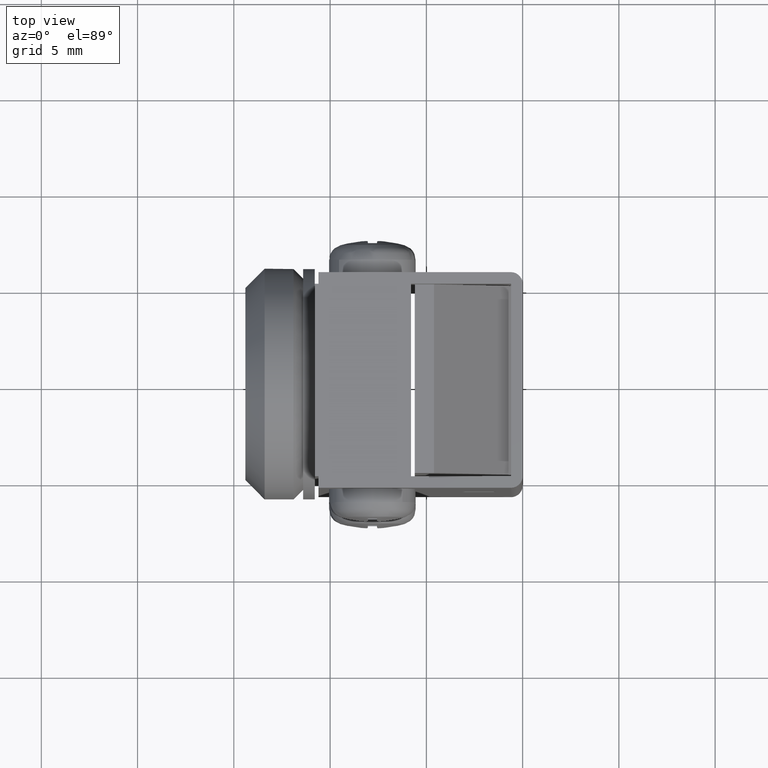
[diagram: clean part render]
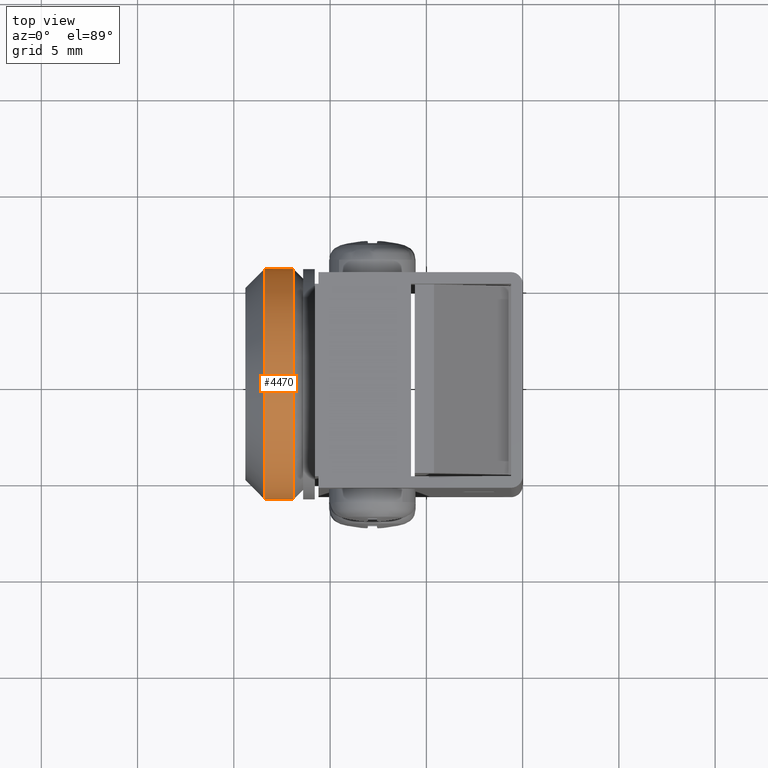
[diagram: same view with one face highlighted and labeled with its STEP entity id]
A machine part, top view. The second image highlights one B-rep face of the part: STEP entity #4470.
In plain terms, the highlighted face is a freeform B-spline surface patch.
Its self-contained STEP definition (entity closure, byte-faithful):
#4134=CARTESIAN_POINT('',(-13.099956999999900,0.0,22.0));
#4135=VERTEX_POINT('',#4134);
#4136=CARTESIAN_POINT('',(-13.099956999996570,5.981504002400083,16.470754574392810));
#4137=VERTEX_POINT('',#4136);
#4138=CARTESIAN_POINT('',(-13.099956999999900,0.0,22.0));
#4139=CARTESIAN_POINT('',(-13.099956999999904,5.546342949901852,22.000000000000007));
#4140=CARTESIAN_POINT('',(-13.099956999996568,5.981504002400083,16.470754574392814));
#4148=(BOUNDED_CURVE()B_SPLINE_CURVE(2,(#4138,#4139,#4140),.UNSPECIFIED.,.F.,.U.)B_SPLINE_CURVE_WITH_KNOTS((3,3),(0.0,0.236331300631307),.UNSPECIFIED.)CURVE()GEOMETRIC_REPRESENTATION_ITEM()RATIONAL_B_SPLINE_CURVE((1.0,0.723120658606908,0.969723356168768))REPRESENTATION_ITEM(''));
#4149=EDGE_CURVE('',#4135,#4137,#4148,.T.);
#4197=CARTESIAN_POINT('',(-13.099956999999900,-5.988808790529459,15.633708762762380));
#4198=VERTEX_POINT('',#4197);
#4212=CARTESIAN_POINT('',(-13.099956999999899,-5.988808790529459,15.633708762762373));
#4213=CARTESIAN_POINT('',(-13.099956999999897,-5.999999999999999,15.816683420179906));
#4214=CARTESIAN_POINT('',(-13.099956999999900,-6.0,16.0));
#4215=CARTESIAN_POINT('',(-13.099956999999902,-6.0,22.000000000000007));
#4216=CARTESIAN_POINT('',(-13.099956999999900,0.0,22.0));
#4224=(BOUNDED_CURVE()B_SPLINE_CURVE(2,(#4212,#4213,#4214,#4215,#4216),.UNSPECIFIED.,.F.,.U.)B_SPLINE_CURVE_WITH_KNOTS((3,2,3),(0.739332962240327,0.750000000000000,1.0),.UNSPECIFIED.)CURVE()GEOMETRIC_REPRESENTATION_ITEM()RATIONAL_B_SPLINE_CURVE((0.976072041669684,0.987502787901459,1.0,0.707106781186548,1.0))REPRESENTATION_ITEM(''));
#4225=EDGE_CURVE('',#4198,#4135,#4224,.T.);
#4248=CARTESIAN_POINT('',(-13.099956999999900,2.109699763927518,10.383135491574540));
#4249=VERTEX_POINT('',#4248);
#4250=CARTESIAN_POINT('',(-13.099956999996568,5.981504002400083,16.470754574392814));
#4251=CARTESIAN_POINT('',(-13.099956999999895,6.0,16.235740642071612));
#4252=CARTESIAN_POINT('',(-13.099956999999900,6.0,16.0));
#4253=CARTESIAN_POINT('',(-13.099956999999902,6.0,11.844336038125144));
#4254=CARTESIAN_POINT('',(-13.099956999999897,2.109699763927518,10.383135491574535));
#4262=(BOUNDED_CURVE()B_SPLINE_CURVE(2,(#4250,#4251,#4252,#4253,#4254),.UNSPECIFIED.,.F.,.U.)B_SPLINE_CURVE_WITH_KNOTS((3,2,3),(0.236331300631307,0.250000000000000,0.440284398181928),.UNSPECIFIED.)CURVE()GEOMETRIC_REPRESENTATION_ITEM()RATIONAL_B_SPLINE_CURVE((0.969723356168768,0.983986122579640,1.0,0.777067960506058,0.893499832776712))REPRESENTATION_ITEM(''));
#4263=EDGE_CURVE('',#4137,#4249,#4262,.T.);
#4346=CARTESIAN_POINT('',(-11.599942000000199,2.109707846357921,10.383138527343251));
#4347=VERTEX_POINT('',#4346);
#4363=CARTESIAN_POINT('',(-11.599942000012710,-5.988808790534555,15.633708762743259));
#4364=VERTEX_POINT('',#4363);
#4378=CARTESIAN_POINT('',(-11.599942000012710,-5.988808790534555,15.633708762743259));
#4379=CARTESIAN_POINT('',(-13.099956999999900,-5.988808790529459,15.633708762762380));
#4380=QUASI_UNIFORM_CURVE('',1,(#4378,#4379),.UNSPECIFIED.,.F.,.U.);
#4381=EDGE_CURVE('',#4364,#4198,#4380,.T.);
#4386=CARTESIAN_POINT('',(-11.599942000000199,2.109707846357921,10.383138527343251));
#4387=CARTESIAN_POINT('',(-13.099956999999900,2.109699763927518,10.383135491574540));
#4388=QUASI_UNIFORM_CURVE('',1,(#4386,#4387),.UNSPECIFIED.,.F.,.U.);
#4389=EDGE_CURVE('',#4347,#4249,#4388,.T.);
#4394=CARTESIAN_POINT('',(-11.562441625000201,-5.988808790531200,15.633708762790860));
#4395=CARTESIAN_POINT('',(-11.562441625000204,-6.355100027740342,21.622517553322066));
#4396=CARTESIAN_POINT('',(-11.562441625000201,-0.366291237209142,21.988808790531198));
#4397=CARTESIAN_POINT('',(-11.562441625000204,5.622517553322059,22.355100027740335));
#4398=CARTESIAN_POINT('',(-11.562441625000201,5.988808790531200,16.366291237209140));
#4399=CARTESIAN_POINT('',(-11.562441625000204,6.259423337216051,11.941782509181611));
#4400=CARTESIAN_POINT('',(-11.562441625000206,2.109707846349432,10.383138527340057));
#4401=CARTESIAN_POINT('',(-13.138394884374900,-5.988808790531200,15.633708762790860));
#4402=CARTESIAN_POINT('',(-13.138394884374895,-6.355100027740342,21.622517553322066));
#4403=CARTESIAN_POINT('',(-13.138394884374900,-0.366291237209142,21.988808790531198));
#4404=CARTESIAN_POINT('',(-13.138394884374895,5.622517553322059,22.355100027740335));
#4405=CARTESIAN_POINT('',(-13.138394884374900,5.988808790531200,16.366291237209140));
#4406=CARTESIAN_POINT('',(-13.138394884374899,6.259423337216051,11.941782509181611));
#4407=CARTESIAN_POINT('',(-13.138394884374891,2.109707846349432,10.383138527340057));
#4415=(BOUNDED_SURFACE()B_SPLINE_SURFACE(2,1,((#4394,#4401),(#4395,#4402),(#4396,#4403),(#4397,#4404),(#4398,#4405),(#4399,#4406),(#4400,#4407)),.UNSPECIFIED.,.F.,.F.,.U.)B_SPLINE_SURFACE_WITH_KNOTS((3,2,2,3),(2,2),(0.0,9.941125496954285,19.882250993908571,27.835151391471999),(0.0,1.0),.UNSPECIFIED.)GEOMETRIC_REPRESENTATION_ITEM()RATIONAL_B_SPLINE_SURFACE(((1.0,1.0),(0.707106781186548,0.707106781186548),(1.0,1.0),(0.707106781186548,0.707106781186548),(1.0,1.0),(0.765685424949238,0.765685424949238),(0.906274169979695,0.906274169979695)))REPRESENTATION_ITEM('')SURFACE());
#4416=CARTESIAN_POINT('',(-11.599942000004500,5.958057158182267,16.708205407974759));
#4417=VERTEX_POINT('',#4416);
#4418=CARTESIAN_POINT('',(-11.599942000004507,5.958057158182267,16.708205407974763));
#4419=CARTESIAN_POINT('',(-11.599942000000203,6.0,16.355344717945520));
#4420=CARTESIAN_POINT('',(-11.599942000000199,6.0,16.0));
#4421=CARTESIAN_POINT('',(-11.599942000000199,6.0,11.844342425846911));
#4422=CARTESIAN_POINT('',(-11.599942000000201,2.109707846357921,10.383138527343245));
#4430=(BOUNDED_CURVE()B_SPLINE_CURVE(2,(#4418,#4419,#4420,#4421,#4422),.UNSPECIFIED.,.F.,.U.)B_SPLINE_CURVE_WITH_KNOTS((3,2,3),(0.229562473513732,0.250000000000000,0.440284170898432),.UNSPECIFIED.)CURVE()GEOMETRIC_REPRESENTATION_ITEM()RATIONAL_B_SPLINE_CURVE((0.956026754184138,0.976055948331407,1.0,0.777068226785237,0.893499554635181))REPRESENTATION_ITEM(''));
#4431=EDGE_CURVE('',#4417,#4347,#4430,.T.);
#4432=ORIENTED_EDGE('',*,*,#4431,.T.);
#4433=ORIENTED_EDGE('',*,*,#4389,.T.);
#4434=ORIENTED_EDGE('',*,*,#4263,.F.);
#4435=ORIENTED_EDGE('',*,*,#4149,.F.);
#4436=ORIENTED_EDGE('',*,*,#4225,.F.);
#4437=ORIENTED_EDGE('',*,*,#4381,.F.);
#4438=CARTESIAN_POINT('',(-11.599942000000199,0.0,22.0));
#4439=VERTEX_POINT('',#4438);
#4440=CARTESIAN_POINT('',(-11.599942000012707,-5.988808790534555,15.633708762743254));
#4441=CARTESIAN_POINT('',(-11.599942000000196,-6.0,15.816683420113764));
#4442=CARTESIAN_POINT('',(-11.599942000000199,-6.0,16.0));
#4443=CARTESIAN_POINT('',(-11.599942000000199,-6.0,22.000000000000007));
#4444=CARTESIAN_POINT('',(-11.599942000000199,0.0,22.0));
#4452=(BOUNDED_CURVE()B_SPLINE_CURVE(2,(#4440,#4441,#4442,#4443,#4444),.UNSPECIFIED.,.F.,.U.)B_SPLINE_CURVE_WITH_KNOTS((3,2,3),(0.739332962236527,0.750000000000000,1.0),.UNSPECIFIED.)CURVE()GEOMETRIC_REPRESENTATION_ITEM()RATIONAL_B_SPLINE_CURVE((0.976072041661539,0.987502787897006,1.0,0.707106781186548,1.0))REPRESENTATION_ITEM(''));
#4453=EDGE_CURVE('',#4364,#4439,#4452,.T.);
#4454=ORIENTED_EDGE('',*,*,#4453,.T.);
#4455=CARTESIAN_POINT('',(-11.599942000000199,0.0,22.0));
#4456=CARTESIAN_POINT('',(-11.599942000000199,5.329047155647496,21.999999999999996));
#4457=CARTESIAN_POINT('',(-11.599942000004507,5.958057158182267,16.708205407974763));
#4465=(BOUNDED_CURVE()B_SPLINE_CURVE(2,(#4455,#4456,#4457),.UNSPECIFIED.,.F.,.U.)B_SPLINE_CURVE_WITH_KNOTS((3,3),(0.0,0.229562473513732),.UNSPECIFIED.)CURVE()GEOMETRIC_REPRESENTATION_ITEM()RATIONAL_B_SPLINE_CURVE((1.0,0.731050832855140,0.956026754184138))REPRESENTATION_ITEM(''));
#4466=EDGE_CURVE('',#4439,#4417,#4465,.T.);
#4467=ORIENTED_EDGE('',*,*,#4466,.T.);
#4468=EDGE_LOOP('',(#4432,#4433,#4434,#4435,#4436,#4437,#4454,#4467));
#4469=FACE_OUTER_BOUND('',#4468,.T.);
#4470=ADVANCED_FACE('',(#4469),#4415,.T.);